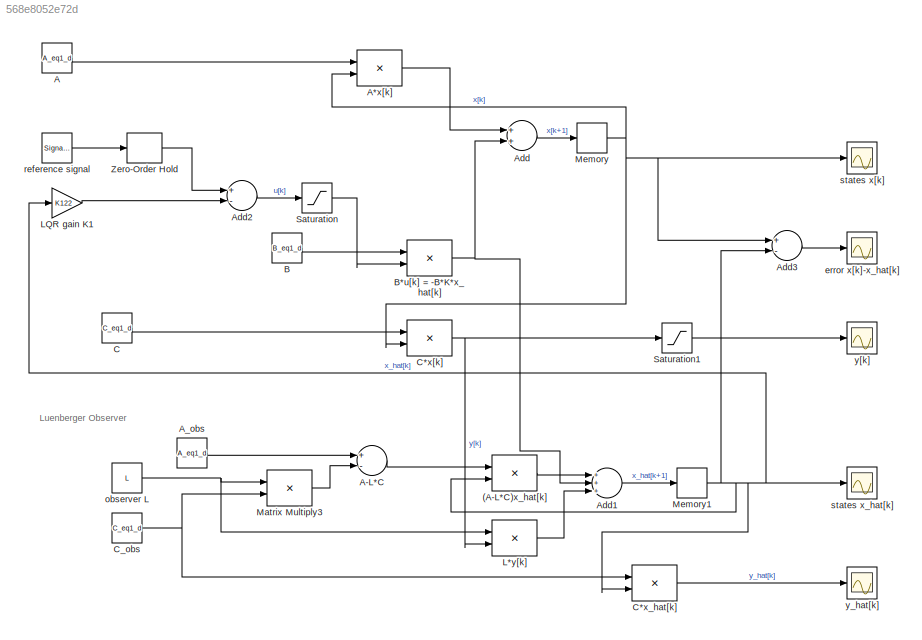
MODEL slx_568e8052e72d
KIND model
CONFIG AbsTol = auto
CONFIG EnableMultiTasking = off
CONFIG FixedStep = auto
CONFIG InitFcn = lin_discr_model
CONFIG MaxStep = auto
CONFIG MinStep = auto
CONFIG RelTol = 1e-3
CONFIG SampleTimeConstraint = Unconstrained
CONFIG Solver = VariableStepAuto
CONFIG SolverName = VariableStepAuto
CONFIG StartTime = 0.0
CONFIG StopTime = 30
BLOCK [Product] (A-L*C)x_hat[k]
  InputSameDT = off
  Multiplication = Matrix(*)
  OutDataTypeStr = Inherit: Inherit via internal rule
  Ports = [2, 1]
  RndMeth = Floor
  SaturateOnIntegerOverflow = off
BLOCK [Constant] A
  SampleTime = Ts
  Value = A_eq1_d
BLOCK [Product] A*x[k]
  InputSameDT = off
  Multiplication = Matrix(*)
  OutDataTypeStr = Inherit: Inherit via internal rule
  Ports = [2, 1]
  RndMeth = Floor
  SaturateOnIntegerOverflow = off
BLOCK [Sum] A-L*C
  InputSameDT = off
  Inputs = +-
  OutDataTypeStr = Inherit: Inherit via internal rule
  Ports = [2, 1]
  SaturateOnIntegerOverflow = off
BLOCK [Constant] A_obs
  Value = A_eq1_d
BLOCK [Sum] Add
  InputSameDT = off
  OutDataTypeStr = Inherit: Inherit via internal rule
  Ports = [2, 1]
  SaturateOnIntegerOverflow = off
BLOCK [Sum] Add1
  InputSameDT = off
  Inputs = +++
  OutDataTypeStr = Inherit: Inherit via internal rule
  Ports = [3, 1]
  SaturateOnIntegerOverflow = off
BLOCK [Sum] Add2
  InputSameDT = off
  Inputs = +-
  OutDataTypeStr = Inherit: Inherit via internal rule
  Ports = [2, 1]
  SaturateOnIntegerOverflow = off
BLOCK [Sum] Add3
  InputSameDT = off
  Inputs = +-
  OutDataTypeStr = Inherit: Inherit via internal rule
  Ports = [2, 1]
  SaturateOnIntegerOverflow = off
BLOCK [Constant] B
  SampleTime = Ts
  Value = B_eq1_d
BLOCK [Product] B*u[k] = -B*K*x_hat[k]
  InputSameDT = off
  Multiplication = Matrix(*)
  OutDataTypeStr = Inherit: Inherit via internal rule
  Ports = [2, 1]
  RndMeth = Floor
  SaturateOnIntegerOverflow = off
BLOCK [Constant] C
  SampleTime = Ts
  Value = C_eq1_d
BLOCK [Product] C*x[k]
  InputSameDT = off
  Multiplication = Matrix(*)
  OutDataTypeStr = Inherit: Inherit via internal rule
  Ports = [2, 1]
  RndMeth = Floor
  SaturateOnIntegerOverflow = off
BLOCK [Product] C*x_hat[k]
  InputSameDT = off
  Multiplication = Matrix(*)
  OutDataTypeStr = Inherit: Inherit via internal rule
  Ports = [2, 1]
  RndMeth = Floor
  SaturateOnIntegerOverflow = off
BLOCK [Constant] C_obs
  Value = C_eq1_d
BLOCK [Product] L*y[k]
  InputSameDT = off
  Multiplication = Matrix(*)
  OutDataTypeStr = Inherit: Inherit via internal rule
  Ports = [2, 1]
  RndMeth = Floor
  SaturateOnIntegerOverflow = off
BLOCK [Gain] LQR gain K1
  Gain = K122
  Multiplication = Matrix(K*u)
  OutDataTypeStr = Inherit: Inherit via internal rule
  ParamDataTypeStr = Inherit: Inherit via internal rule
  SaturateOnIntegerOverflow = off
BLOCK [Product] Matrix Multiply3
  InputSameDT = off
  Multiplication = Matrix(*)
  OutDataTypeStr = Inherit: Inherit via internal rule
  Ports = [2, 1]
  RndMeth = Floor
  SaturateOnIntegerOverflow = off
BLOCK [Memory] Memory
  InitialCondition = [pi;0;0;0]
BLOCK [Memory] Memory1
  InitialCondition = [pi;0;0;0]
BLOCK [Saturate] Saturation
  InputPortMap = u0
  LowerLimit = -1
  Ports = [1, 1]
  UpperLimit = 1
BLOCK [Saturate] Saturation1
  InputPortMap = u0
  LowerLimit = -2*pi
  Ports = [1, 1]
  UpperLimit = 2*pi
BLOCK [ZeroOrderHold] Zero-Order Hold
  SampleTime = Ts
BLOCK [Scope] error x[k]-x_hat[k]
  Floating = off
  NumInputPorts = 1
  Ports = [1]
  ScopeSpecificationString = Simulink.scopes.TimeScopeBlockCfg('CurrentConfiguration', extmgr.ConfigurationSet(extmgr.Configuration('Core','General UI',true),extmgr.Configuration('Core','Source UI',true),extmgr.Configuration('Sources','WiredSimulink',true,'DataLoggingVariableName','ScopeData1'),extmgr.Configuration('Visuals','Time Domain',true,'SerializedDisplays',{struct('MinYLimReal','-0.00000000000018','MaxYLimReal','0.000...<+1462ch>
BLOCK [Constant] observer L
  SampleTime = Ts
  Value = L
BLOCK [SignalGenerator] reference signal
  Amplitude = -0.3
  Ports = [0, 1]
  WaveForm = square
BLOCK [Scope] states x[k]
  Floating = off
  NumInputPorts = 1
  Ports = [1]
  ScopeSpecificationString = Simulink.scopes.TimeScopeBlockCfg('CurrentConfiguration', extmgr.ConfigurationSet(extmgr.Configuration('Core','General UI',true),extmgr.Configuration('Core','Source UI',true),extmgr.Configuration('Sources','WiredSimulink',true,'DataLoggingVariableName','ScopeData2'),extmgr.Configuration('Visuals','Time Domain',true,'SerializedDisplays',{struct('MinYLimReal','-34.98317','MaxYLimReal','43.00115','YL...<+1444ch>
BLOCK [Scope] states x_hat[k]
  Floating = off
  NumInputPorts = 1
  Ports = [1]
  ScopeSpecificationString = Simulink.scopes.TimeScopeBlockCfg('CurrentConfiguration', extmgr.ConfigurationSet(extmgr.Configuration('Core','General UI',true),extmgr.Configuration('Core','Source UI',true),extmgr.Configuration('Sources','WiredSimulink',true,'DataLoggingVariableName','ScopeData3'),extmgr.Configuration('Visuals','Time Domain',true,'SerializedDisplays',{struct('MinYLimReal','-1183.44676','MaxYLimReal','1189.77307'...<+1463ch>
BLOCK [Scope] y[k]
  Floating = off
  NumInputPorts = 1
  Ports = [1]
  ScopeSpecificationString = Simulink.scopes.TimeScopeBlockCfg('CurrentConfiguration', extmgr.ConfigurationSet(extmgr.Configuration('Core','General UI',true),extmgr.Configuration('Core','Source UI',true),extmgr.Configuration('Sources','WiredSimulink',true,'DataLoggingVariableName','ScopeData4'),extmgr.Configuration('Visuals','Time Domain',true,'SerializedDisplays',{struct('MinYLimReal','-4.99627','MaxYLimReal','4.0458','YLabe...<+1461ch>
BLOCK [Scope] y_hat[k]
  Floating = off
  NumInputPorts = 1
  Ports = [1]
  ScopeSpecificationString = Simulink.scopes.TimeScopeBlockCfg('CurrentConfiguration', extmgr.ConfigurationSet(extmgr.Configuration('Core','General UI',true),extmgr.Configuration('Core','Source UI',true),extmgr.Configuration('Sources','WiredSimulink',true,'DataLoggingVariableName','ScopeData1'),extmgr.Configuration('Visuals','Time Domain',true,'SerializedDisplays',{struct('MinYLimReal','-94.98145','MaxYLimReal','104.47547','Y...<+1392ch>
ANNOTATION (root): Luenberger Observer
LINE (A-L*C)x_hat[k]:1 -> Add1:1
LINE A*x[k]:1 -> Add:1
LINE A-L*C:1 -> (A-L*C)x_hat[k]:1
LINE A:1 -> A*x[k]:1
LINE A_obs:1 -> A-L*C:1
LINE Add1:1 -> Memory1:1
LINE Add2:1 -> Saturation:1
LINE Add3:1 -> error x[k]-x_hat[k]:1
LINE Add:1 -> Memory:1
NET B*u[k] = -B*K*x_hat[k]:1 -> Add1:2, Add:2
LINE B:1 -> B*u[k] = -B*K*x_hat[k]:1
NET C*x[k]:1 -> L*y[k]:2, Saturation1:1
LINE C*x_hat[k]:1 -> y_hat[k]:1
LINE C:1 -> C*x[k]:1
NET C_obs:1 -> C*x_hat[k]:1, Matrix Multiply3:2
LINE L*y[k]:1 -> Add1:3
LINE LQR gain K1:1 -> Add2:2
LINE Matrix Multiply3:1 -> A-L*C:2
NET Memory1:1 -> (A-L*C)x_hat[k]:2, Add3:2, C*x_hat[k]:2, LQR gain K1:1, states x_hat[k]:1
NET Memory:1 -> A*x[k]:2, Add3:1, C*x[k]:2, states x[k]:1
LINE Saturation1:1 -> y[k]:1
LINE Saturation:1 -> B*u[k] = -B*K*x_hat[k]:2
LINE Zero-Order Hold:1 -> Add2:1
NET observer L:1 -> L*y[k]:1, Matrix Multiply3:1
LINE reference signal:1 -> Zero-Order Hold:1
note: NET lines group one-source signal fan-out (src -> all destinations, sorted); 1:1 wires keep LINE
